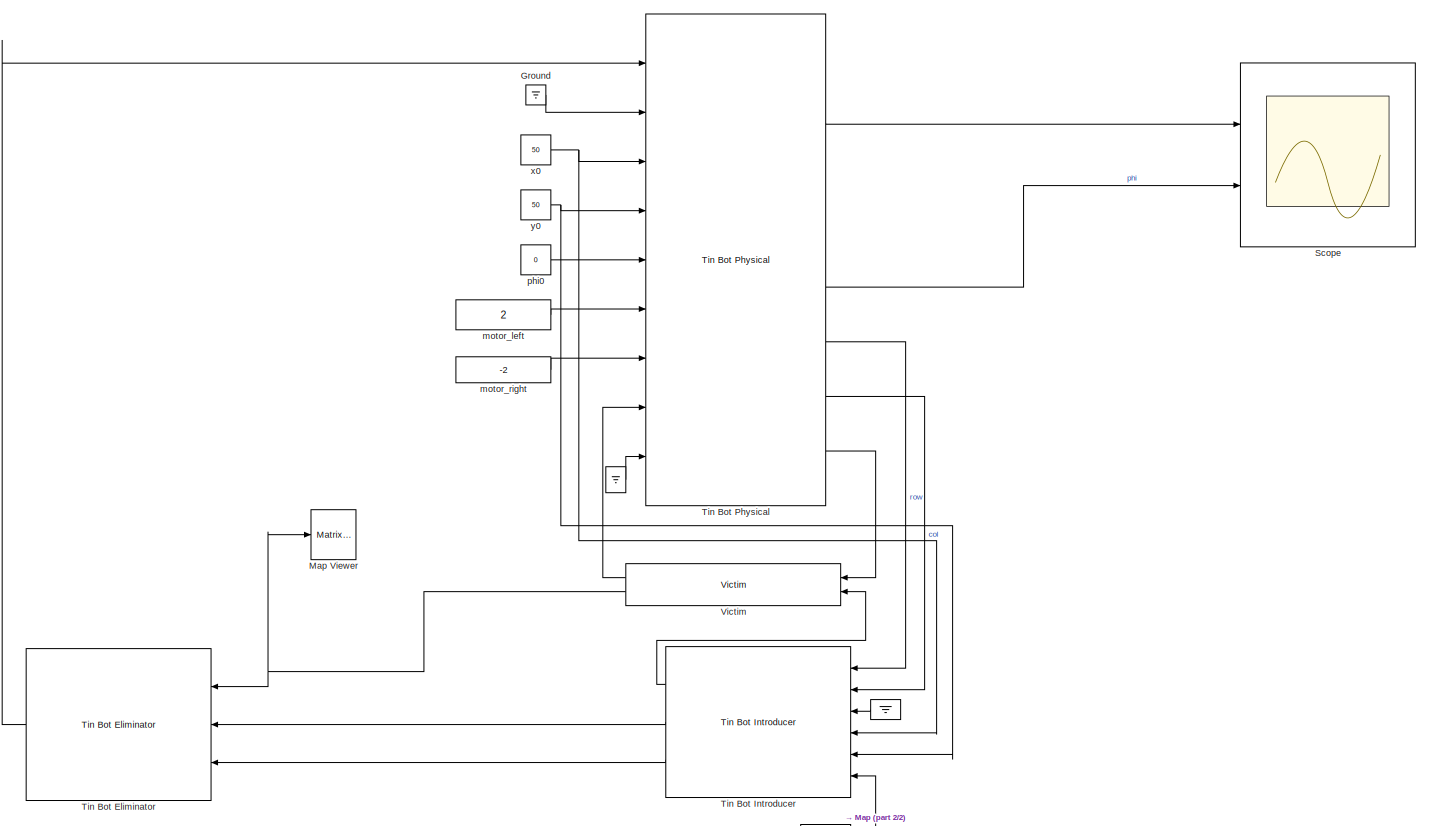
[diagram: root canvas - part 1/2, most of the canvas]
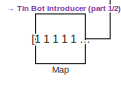
[diagram: root canvas - part 2/2, bottom center region]
MODEL slx_3e3b5c95fa78
KIND model
CONFIG AbsTol = auto
CONFIG FixedStep = 0.02
CONFIG MaxStep = 0.0001
CONFIG MinStep = auto
CONFIG RelTol = 1e-3
CONFIG SampleTimeConstraint = Unconstrained
CONFIG Solver = FixedStepAuto
CONFIG SolverMode = Auto
CONFIG SolverName = FixedStepAuto
CONFIG StartTime = 0.0
CONFIG StopTime = 10
BLOCK [Ground]  
BLOCK [Ground]   
BLOCK [Ground] Ground
BLOCK [Constant] Map
  Value = [1 1 1 1 1 1 1 1 1 1 1 1 1 1 1 1 1 1 1 1 1 1 1 1 1 1 1 1 1 1 1 1 1 1 1 1 1 1 1 1 1 1 1 1 1 1 1 1 1 1 1 1 1 1 1 1 1 1 1 1 1 1 1 1 1 1 1 1 1 1 1 1 1 1 1 1 1 1 1 1 1 1 1 1 1 1 1 1 1 1 1 1 1 1 1 1 1 1 1 1 1 1 1 1 1 1 1 1 1 1 1 1 1 1 1 1 1 1 1 1 1 1 1 1 1 1 1 1 1 1 1 1 1 1 1 1 1 1 1 1 1 1 1 1 1 1 1 1 1 1 1 1 1 1 1 1 1 1 1 1 1 1 1 1 1 1 1 1 1 1 1 1 1 1 1 1 1 1 1 1 1 1 1 1 1 1 1 1 1 1 1 1 1 1 1 1 1 1 1 1...<+79601ch>
BLOCK [Reference] Map Viewer  REF=dspsnks4/Matrix
Viewer
  Ports = [1]
  SourceBlock = dspsnks4/Matrix\nViewer
  SourceType = Matrix Viewer
BLOCK [Scope] Scope
  NumInputPorts = 2
  Ports = [2]
  ScopeSpecificationString = Simulink.scopes.TimeScopeBlockCfg('CurrentConfiguration', extmgr.ConfigurationSet(extmgr.Configuration('Core','General UI',true),extmgr.Configuration('Core','Source UI',true),extmgr.Configuration('Sources','WiredSimulink',true),extmgr.Configuration('Visuals','Time Domain',true,'SerializedDisplays',{struct('MinYLimReal','-0.125','MaxYLimReal','1.125','YLabelReal','','MinYLimMag','0.00000','MaxYLimM...<+2164ch>
BLOCK [Reference] Tin Bot Eliminator  REF=tinbot/Tin Bot Eliminator  (lib defined in slx_3c5c153e9850, slx_5b2796442827, +1 more)
  Ports = [3, 1]
  SourceBlock = tinbot/Tin Bot Eliminator
BLOCK [Reference] Tin Bot Introducer  REF=tinbot/Tin Bot Introducer  (lib defined in slx_3c5c153e9850, slx_5b2796442827, +1 more)
  Ports = [6, 3]
  SourceBlock = tinbot/Tin Bot Introducer
BLOCK [Reference] Tin Bot Physical  REF=tinbot/Tin Bot Physical  (lib defined in slx_3c5c153e9850, slx_5b2796442827, +1 more)
  Ports = [9, 8]
  SourceBlock = tinbot/Tin Bot Physical
BLOCK [Reference] Victim  REF=tinbot/Victim  (lib defined in slx_3c5c153e9850, slx_5b2796442827, +1 more)
  Ports = [2, 2]
  SourceBlock = tinbot/Victim
BLOCK [Constant] motor_left
  Value = 2
BLOCK [Constant] motor_right
  Value = -2
BLOCK [Constant] phi0
  Value = 0
BLOCK [Constant] x0
  Value = 50
BLOCK [Constant] y0
  Value = 50
LINE   :1 -> Tin Bot Physical:9
LINE  :1 -> Tin Bot Introducer:3
LINE Ground:1 -> Tin Bot Physical:2
LINE Map:1 -> Tin Bot Introducer:6
LINE Tin Bot Eliminator:1 -> Tin Bot Physical:1
LINE Tin Bot Introducer:1 -> Victim:2
LINE Tin Bot Introducer:2 -> Tin Bot Eliminator:2
LINE Tin Bot Introducer:3 -> Tin Bot Eliminator:3
LINE Tin Bot Physical:2 -> Scope:1
LINE Tin Bot Physical:5 -> Scope:2
LINE Tin Bot Physical:6 -> Tin Bot Introducer:1
LINE Tin Bot Physical:7 -> Tin Bot Introducer:2
LINE Tin Bot Physical:8 -> Victim:1
LINE Victim:1 -> Tin Bot Physical:8
NET Victim:2 -> Map Viewer:1, Tin Bot Eliminator:1
LINE motor_left:1 -> Tin Bot Physical:6
LINE motor_right:1 -> Tin Bot Physical:7
LINE phi0:1 -> Tin Bot Physical:5
NET x0:1 -> Tin Bot Introducer:4, Tin Bot Physical:3
NET y0:1 -> Tin Bot Introducer:5, Tin Bot Physical:4
note: NET lines group one-source signal fan-out (src -> all destinations, sorted); 1:1 wires keep LINE
